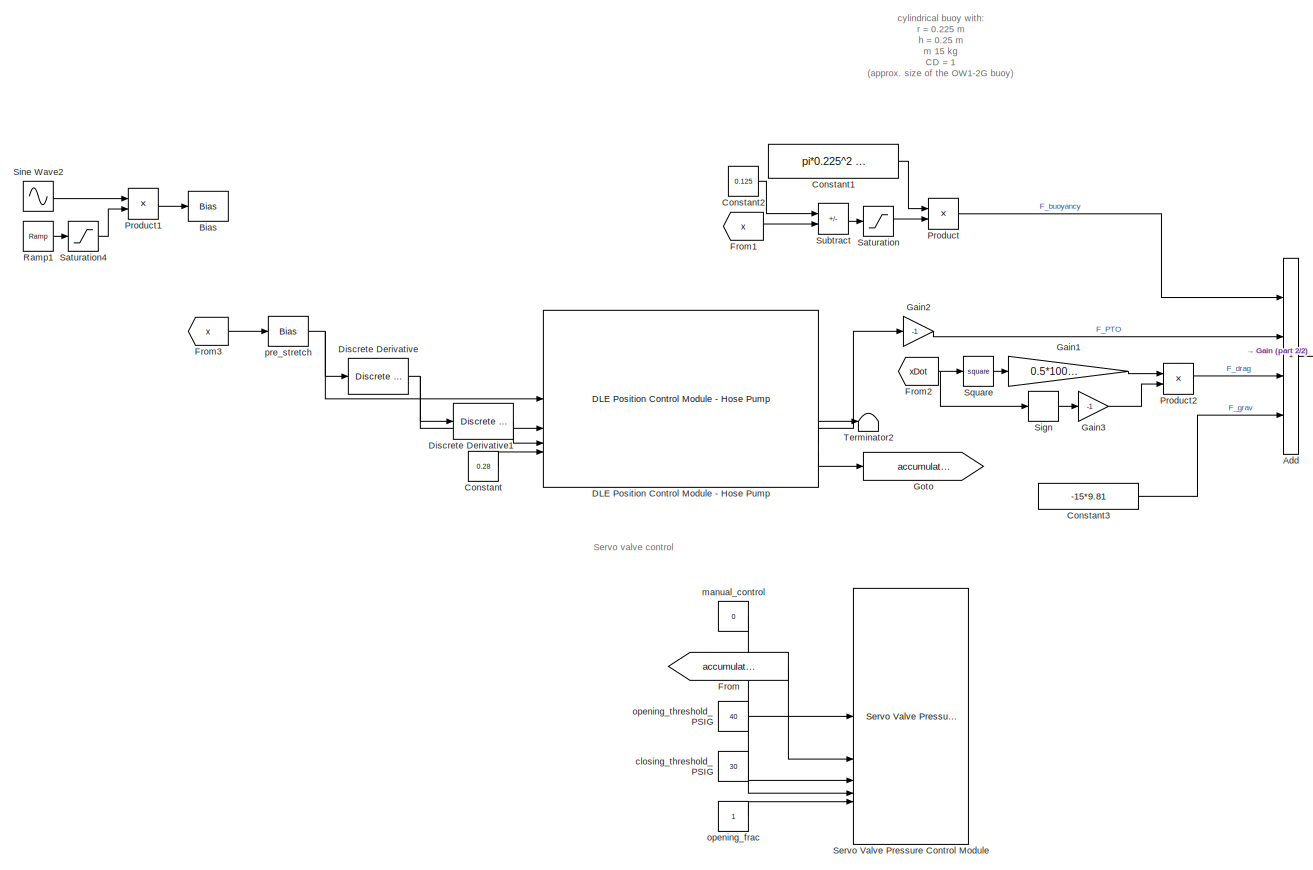
[diagram: root canvas - part 1/2, most of the canvas]
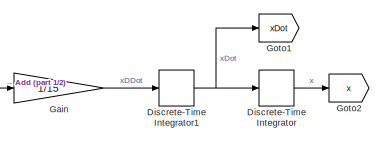
[diagram: root canvas - part 2/2, middle right region]
MODEL slx_e23b157782c0
KIND model
CONFIG AbsTol = auto
CONFIG EnableMultiTasking = off
CONFIG FixedStep = 0.0001
CONFIG MaxStep = auto
CONFIG MinStep = auto
CONFIG RelTol = 1e-3
CONFIG SampleTimeConstraint = Unconstrained
CONFIG SolverName = FixedStepAuto
CONFIG StartTime = 0.0
CONFIG StopTime = inf
BLOCK [Sum] Add
  IconShape = rectangular
  Inputs = ++++
BLOCK [Bias] Bias
  Bias = 0.17
  Commented = on
  SaturateOnIntegerOverflow = off
BLOCK [Constant] Constant
  Value = 0.28
BLOCK [Constant] Constant1
  Value = pi*0.225^2 * 1000 * 9.81
BLOCK [Constant] Constant2
  Value = 0.125
BLOCK [Constant] Constant3
  Value = -15*9.81
BLOCK [Reference] DLE Position Control Module - Hose Pump  REF=SG_DLE_position_control_module_hose_pump/DLE Position Control Module - Hose Pump
  SourceBlock = SG_DLE_position_control_module_hose_pump/DLE Position Control Module - Hose Pump
  SourceType = SubSystem
BLOCK [Reference] Discrete Derivative  REF=simulink/Discrete/Discrete Derivative
  SourceBlock = simulink/Discrete/Discrete Derivative
  SourceType = Discrete Derivative
BLOCK [Reference] Discrete Derivative1  REF=simulink/Discrete/Discrete Derivative
  SourceBlock = simulink/Discrete/Discrete Derivative
  SourceType = Discrete Derivative
BLOCK [DiscreteIntegrator] Discrete-Time Integrator
  ICPrevOutput = DiscIntNeverNeededParam
  ICPrevScaledInput = DiscIntNeverNeededParam
  InitialConditionSetting = Auto
  SampleTime = -1
BLOCK [DiscreteIntegrator] Discrete-Time Integrator1
  ICPrevOutput = DiscIntNeverNeededParam
  ICPrevScaledInput = DiscIntNeverNeededParam
  InitialConditionSetting = Auto
  SampleTime = -1
BLOCK [From] From
  GotoTag = accumulator_PSIG
BLOCK [From] From1
  GotoTag = x
BLOCK [From] From2
  GotoTag = xDot
BLOCK [From] From3
  GotoTag = x
BLOCK [Gain] Gain
  Gain = 1/15
BLOCK [Gain] Gain1
  Gain = 0.5*1000*(pi*0.225^2)*3
BLOCK [Gain] Gain2
  Gain = -1
BLOCK [Gain] Gain3
  Gain = -1
BLOCK [Goto] Goto
  GotoTag = accumulator_PSIG
BLOCK [Goto] Goto1
  GotoTag = xDot
BLOCK [Goto] Goto2
  GotoTag = x
BLOCK [Product] Product
BLOCK [Product] Product1
  Commented = on
BLOCK [Product] Product2
BLOCK [Reference] Ramp1  REF=simulink/Sources/Ramp
  Commented = on
  SourceBlock = simulink/Sources/Ramp
  SourceType = Ramp
BLOCK [Saturate] Saturation
  LowerLimit = 0
  UpperLimit = 0.25
BLOCK [Saturate] Saturation4
  Commented = on
  LowerLimit = 0
  UpperLimit = 1
BLOCK [Reference] Servo Valve Pressure Control Module  REF=servo_valve_pressure_control_module/Servo Valve Pressure Control Module  (lib defined in slx_62a98533b265)
  SourceBlock = servo_valve_pressure_control_module/Servo Valve Pressure Control Module
  SourceType = SubSystem
BLOCK [Signum] Sign
BLOCK [Sin] Sine Wave2
  Amplitude = 0.05
  Commented = on
  Frequency = 2*pi/5
  SampleTime = 0.0001
BLOCK [Math] Square
  Operator = square
BLOCK [Sum] Subtract
  IconShape = rectangular
  Inputs = +-
BLOCK [Terminator] Terminator2
BLOCK [Constant] closing_threshold_PSIG
  Value = 30
BLOCK [Constant] manual_control
  SampleTime = 0.0001
  Value = 0
BLOCK [Constant] opening_frac
BLOCK [Constant] opening_threshold_PSIG
  Value = 40
BLOCK [Bias] pre_stretch
  Bias = 0.2
  SaturateOnIntegerOverflow = off
ANNOTATION (root): Servo valve control
ANNOTATION (root): cylindrical buoy with: r = 0.225 m h = 0.25 m m 15 kg CD = 1 (approx. size of the OW1-2G buoy) x is the distance between the CG of the buoy and the water surface
LINE Add:1 -> Gain:1
LINE Constant1:1 -> Product:1
LINE Constant2:1 -> Subtract:1
LINE Constant3:1 -> Add:4
LINE Constant:1 -> DLE Position Control Module - Hose Pump:4
LINE DLE Position Control Module - Hose Pump:2 -> Gain2:1
LINE DLE Position Control Module - Hose Pump:3 -> Terminator2:1
LINE DLE Position Control Module - Hose Pump:4 -> Goto:1
LINE Discrete Derivative1:1 -> DLE Position Control Module - Hose Pump:3
NET Discrete Derivative:1 -> DLE Position Control Module - Hose Pump:2, Discrete Derivative1:1
NET Discrete-Time Integrator1:1 -> Discrete-Time Integrator:1, Goto1:1
LINE Discrete-Time Integrator:1 -> Goto2:1
LINE From1:1 -> Subtract:2
NET From2:1 -> Sign:1, Square:1
LINE From3:1 -> pre_stretch:1
LINE From:1 -> Servo Valve Pressure Control Module:2
LINE Gain1:1 -> Product2:1
LINE Gain2:1 -> Add:2
LINE Gain3:1 -> Product2:2
LINE Gain:1 -> Discrete-Time Integrator1:1
LINE Product1:1 -> Bias:1
LINE Product2:1 -> Add:3
LINE Product:1 -> Add:1
LINE Ramp1:1 -> Saturation4:1
LINE Saturation4:1 -> Product1:2
LINE Saturation:1 -> Product:2
LINE Sign:1 -> Gain3:1
LINE Sine Wave2:1 -> Product1:1
LINE Square:1 -> Gain1:1
LINE Subtract:1 -> Saturation:1
LINE closing_threshold_PSIG:1 -> Servo Valve Pressure Control Module:4
LINE manual_control:1 -> Servo Valve Pressure Control Module:1
LINE opening_frac:1 -> Servo Valve Pressure Control Module:5
LINE opening_threshold_PSIG:1 -> Servo Valve Pressure Control Module:3
NET pre_stretch:1 -> DLE Position Control Module - Hose Pump:1, Discrete Derivative:1
note: NET lines group one-source signal fan-out (src -> all destinations, sorted); 1:1 wires keep LINE
